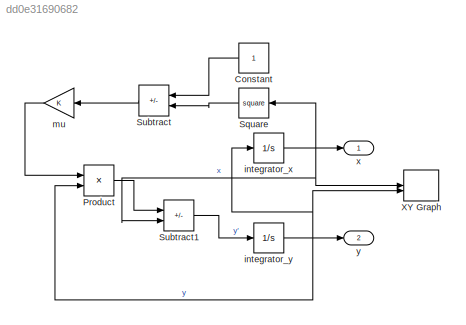
MODEL slx_dd0e31690682
KIND model
CONFIG AbsTol = auto
CONFIG EnableMultiTasking = off
CONFIG FixedStep = 0.01
CONFIG MaxStep = auto
CONFIG MinStep = auto
CONFIG RelTol = 1e-3
CONFIG SampleTimeConstraint = Unconstrained
CONFIG SolverName = ode5
CONFIG StartTime = 0.0
CONFIG StopTime = 7
BLOCK [Constant] Constant
  NameLocation = top
BLOCK [Product] Product
BLOCK [Math] Square
  NameLocation = top
  Operator = square
BLOCK [Sum] Subtract
  IconShape = rectangular
  Inputs = +-
  NameLocation = top
BLOCK [Sum] Subtract1
  IconShape = rectangular
  Inputs = +-
BLOCK [Record] XY Graph
  CompatibilityTag = XY
  FileSettingsInternal = {"entries":[{"content":{"excelSettings":{"content":{},"type":"Streamout.ExcelSettings"}},"type":"Streamout.FileSettingStorage","uuid":"47348152-147c-4a34-9820-513161bfeae3"}],"packageUris":["http://schema.mathworks.com/mf0/streamout_blocks/R2020a"],"version":"1.0"}
  Layout = [1 1]
  SignalsInternal = {"entries":[{"content":{"signals":[{"content":{"blockPath":["vanderpol/XY Graph"],"channel":[],"dimensions":[1],"domain":"vanderpol/XY Graph","lineColor":"#a2142f","plots":[1],"port":1,"sid":[],"signalID":225,"signalName":"x"},"type":"RecordBlkView.Signal","uuid":"343e4f84-dee7-4c2d-ab2e-6534bfece7af"},{"content":{"blockPath":["vanderpol/XY Graph"],"channel":[],"dimensions":[1],"domain":"vanderpol...<+349ch>
  VisualizationBindings = {"xyplotplugin":{"info":[{"series":[{"bindingParametersList":[{"parameter":"X-Axis","signalID":225,"signalName":"x"},{"parameter":"Y-Axis","signalID":228,"signalName":"y"}],"seriesID":40576}],"subplotID":1}]}}
BLOCK [Integrator] integrator_x
  InitialCondition = 1.25
BLOCK [Integrator] integrator_y
  InitialCondition = 2.25
BLOCK [Gain] mu
  NameLocation = top
BLOCK [Outport] x
BLOCK [Outport] y
  Port = 2
LINE Constant:1 -> Subtract:1
LINE Product:1 -> Subtract1:1
LINE Square:1 -> Subtract:2
LINE Subtract1:1 -> integrator_y:1
LINE Subtract:1 -> mu:1
NET integrator_x:1 -> Square:1, Subtract1:2, XY Graph:1, x:1
NET integrator_y:1 -> Product:2, XY Graph:2, integrator_x:1, y:1
LINE mu:1 -> Product:1
note: NET lines group one-source signal fan-out (src -> all destinations, sorted); 1:1 wires keep LINE
